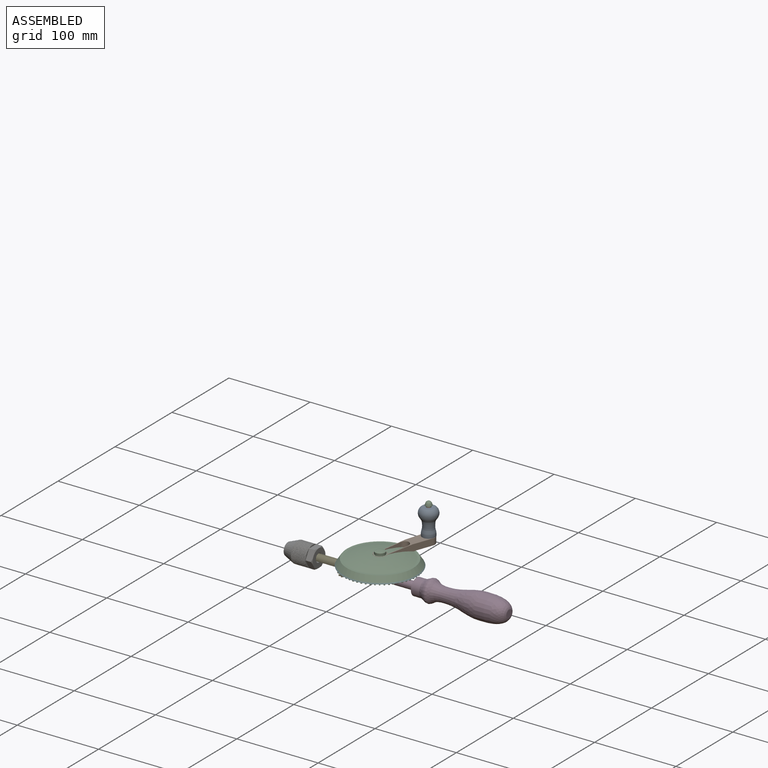
[diagram: assembled view]
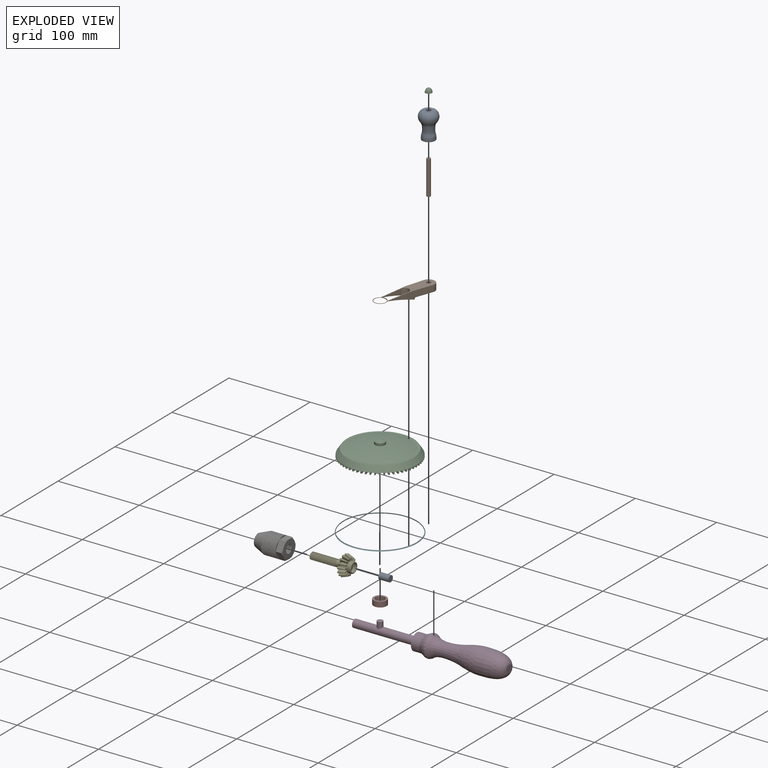
[diagram: exploded view]
GUIDED TOUR — MATED ASSEMBLY (Onshape document b2c207d5956f31ad4c4546be, AutoMate assembly b2c207d5956f31ad4c4546be_ff1017ac6d58e94d12cc54c4_243144a5537a0158968bfa58_default)

This assembly has 11 components, labeled P0..P10 below (a component is one placed occurrence of a part; the same part can appear more than once), held together by 10 mates. A mate is a constraint between two components; its type names the relative motion it leaves free:
  CYLINDRICAL — leaves both rotation about and translation along the listed axis free,
  FASTENED — locks the two components together rigidly (no relative motion),
  SLIDER — leaves translation along the listed axis free.
Axis/direction vectors are unit vectors and 'through' points are millimeter coordinates, both in the assembly's world frame.

MATES
  1. CYLINDRICAL "Cylindrical 2": P7 <-> P3, axis (0.000, 0.000, -1.000) through (-64.19, 0.55, 4.63) mm
  2. FASTENED "Fastened 2": P1 <-> P9, direction (0.000, 0.000, -1.000) through (-45.00, 58.41, 19.12) mm
  3. CYLINDRICAL "Cylindrical 1": P0 <-> P1, axis (0.000, 0.000, 1.000) through (-45.00, 58.41, 59.28) mm
  4. FASTENED "Fastened 4": P8 <-> P4, direction (-1.000, 0.000, 0.000) through (-100.51, 0.55, -0.39) mm
  5. SLIDER "Slider 1": P8 <-> P3, axis (-1.000, 0.000, 0.000) through (-94.16, 0.55, -0.39) mm
  6. FASTENED "Fastened 6": P5 <-> P10, direction (0.000, 0.000, -1.000) through (-64.19, 0.55, 12.25) mm
  7. FASTENED "Fastened 3": P9 <-> P10, direction (0.000, 0.000, 1.000) through (-64.19, 0.55, 23.95) mm
  8. CYLINDRICAL "Cylindrical 3": P6 <-> P4, axis (1.000, 0.000, 0.000) through (-154.60, 0.55, -0.79) mm
  9. FASTENED "Fastened 5": P2 <-> P1, direction (0.000, 0.000, -1.000) through (-45.00, 58.41, 61.03) mm
  10. FASTENED "Fastened 1": P10 <-> P7, direction (0.000, 0.000, -1.000) through (-64.19, 0.55, 10.98) mm

ASSEMBLY ORDER
  1. P4 — the base component [order heuristic]
  2. P8 [order verified]
  3. P6 — core [order heuristic]
  4. P7 [order verified]
  5. P5 [order verified]
  6. P10 [order verified]
  7. P9 [order verified]
  8. P3 [order verified]
  9. P1 [order verified]
  10. P0 [order verified]
  11. P2 [order verified]
(P9, P10 verified with a relaxed clearance tolerance: the source model stores slight part interference there.)
Order-tag legend:
  [order verified] — this step's position reverses a verified removal order: the component was checked to insert without passing through the ones already placed.
  [order heuristic] — the first 2 components form the assembly's core: parts whose collision-free extraction could not be verified, listed in mate-graph order.

Of the 11 components, 0 carry the full construction recipe — the FeatureScript program that regenerates the part's solid from scratch; the rest are supplied as boundary geometry only.
Each toured component is shown spotlighted twice — in the assembled view, then in the exploded view, where a leader line traces a displaced component back to its assembled socket (saturated green if recipe-attached, orange if geometry-only; every other component desaturated gray) — followed by its recipe or geometry summary and the mates that hold it.
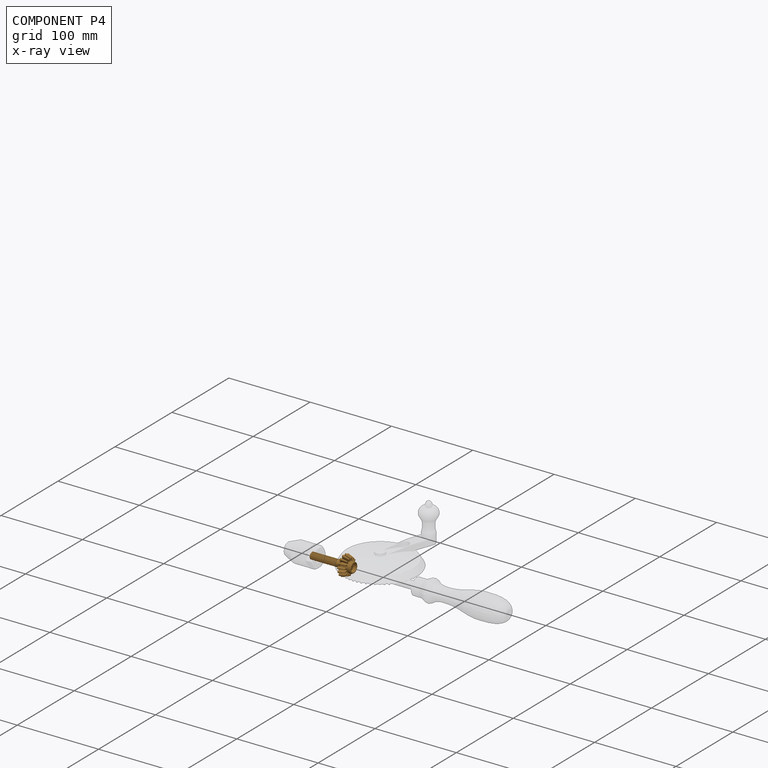
[diagram: component P4 — x-ray view]
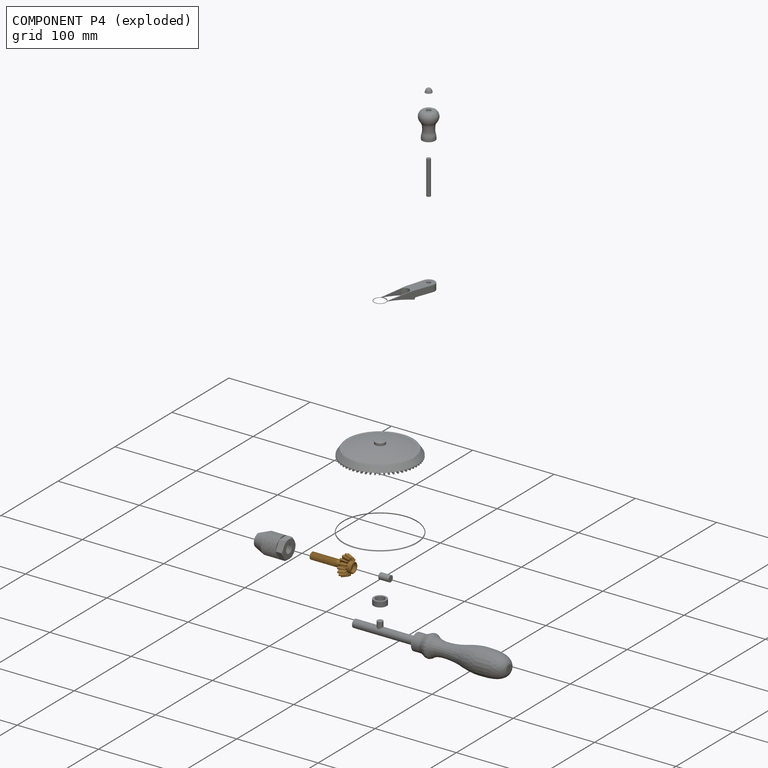
[diagram: component P4 — exploded]
COMPONENT P4 — geometry summary (no construction recipe available for this part):
  bounding box: 53.7 x 30.2 x 30.1 mm
  B-rep topology: 1 solid, 120 faces, 692 edges
  volume: 3942 mm^3 (8% of its bounding box)
Held by: FASTENED mate "Fastened 4" to P8; CYLINDRICAL mate "Cylindrical 3" to P6.
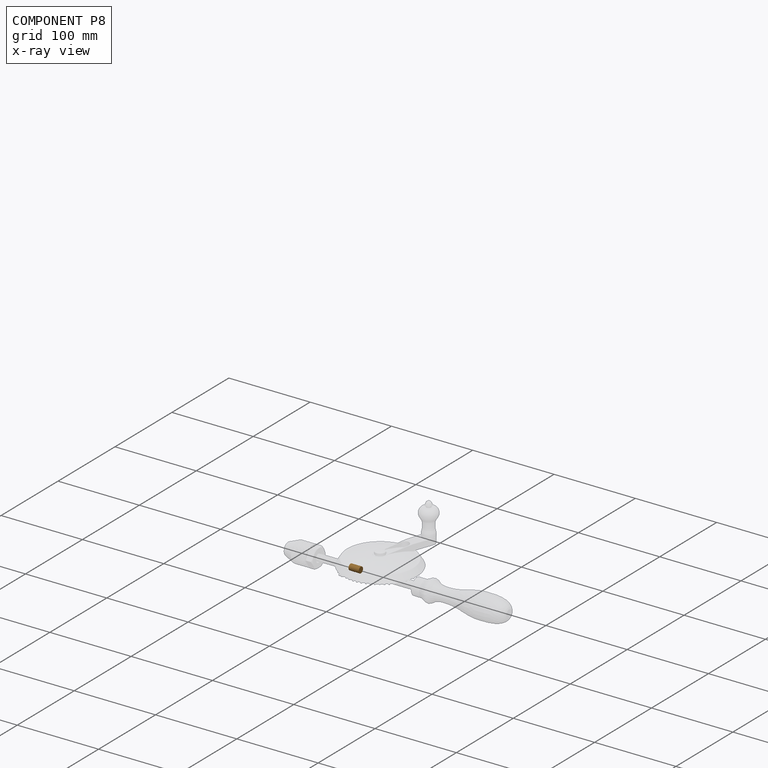
[diagram: component P8 — x-ray view]
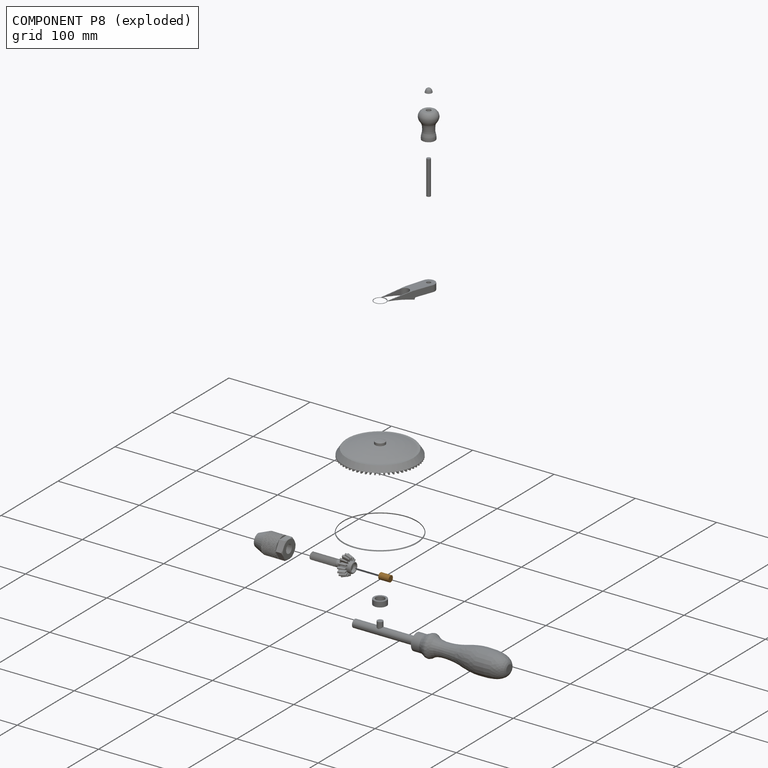
[diagram: component P8 — exploded]
COMPONENT P8 — geometry summary (no construction recipe available for this part):
  bounding box: 12.7 x 7.6 x 7.6 mm
  B-rep topology: 1 solid, 3 faces, 6 edges
  volume: 579 mm^3 (79% of its bounding box)
  symmetry: revolution-symmetric about the x axis through its bounding-box center; 2-fold rotationally symmetric about the y axis; 2-fold rotationally symmetric about the z axis; mirror-symmetric across its x mid-plane, y mid-plane, z mid-plane
Held by: FASTENED mate "Fastened 4" to P4; SLIDER mate "Slider 1" to P3.
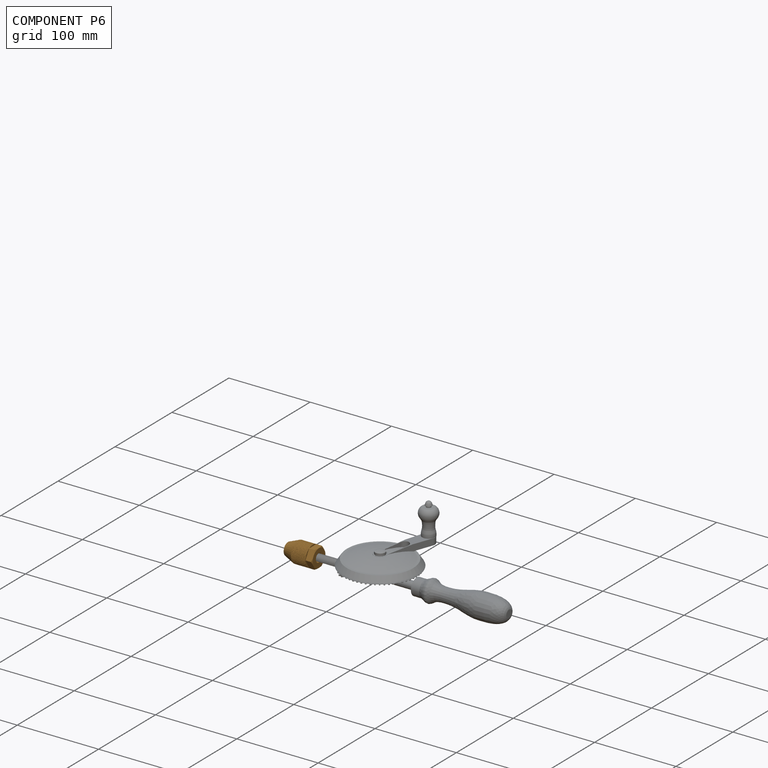
[diagram: component P6 — assembled]
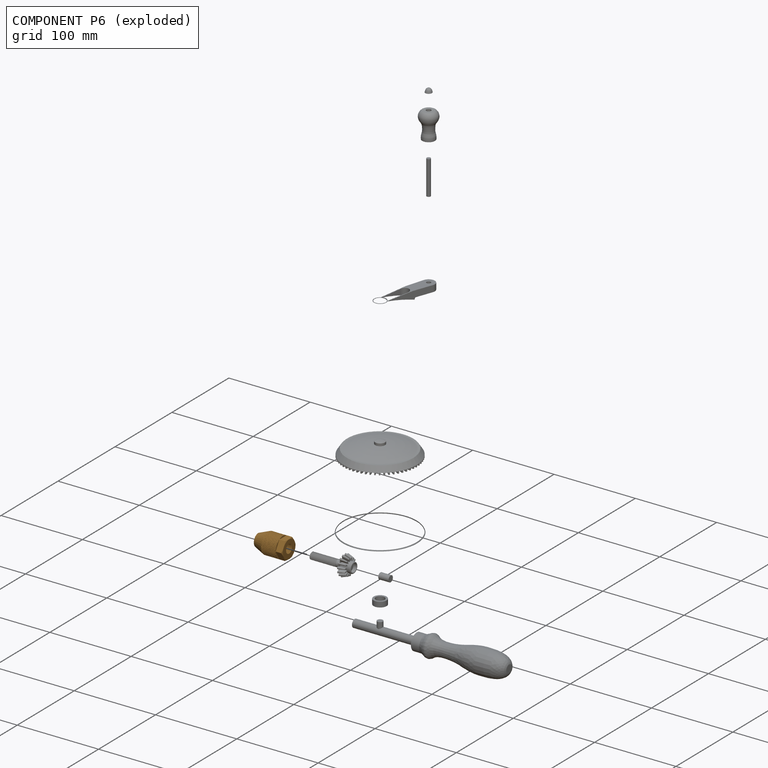
[diagram: component P6 — exploded]
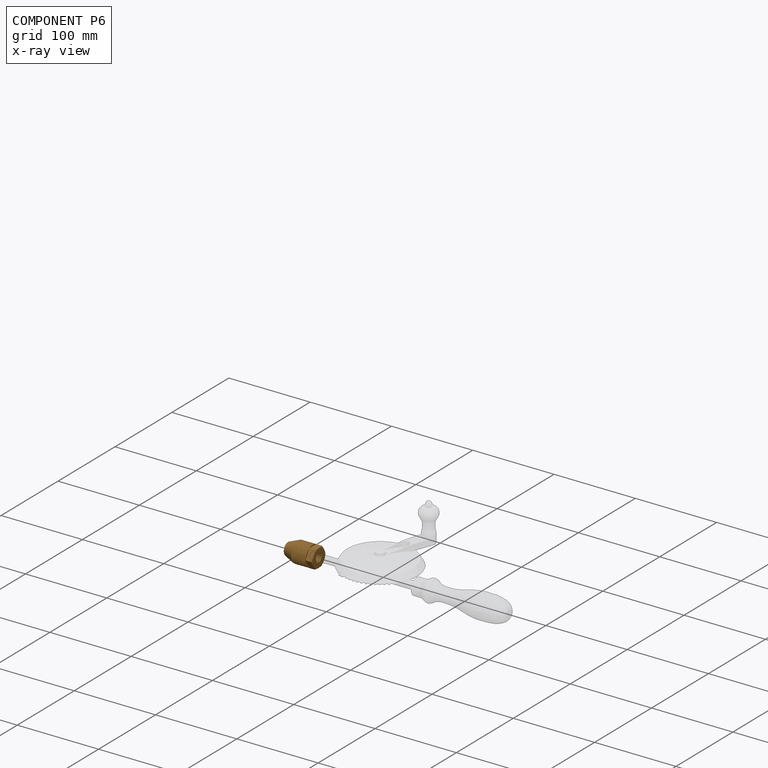
[diagram: component P6 — x-ray view]
COMPONENT P6 — geometry summary (no construction recipe available for this part):
  bounding box: 39.3 x 26.9 x 26.9 mm
  B-rep topology: 1 solid, 3353 faces, 13354 edges
  volume: 13782 mm^3 (48% of its bounding box)
Held by: CYLINDRICAL mate "Cylindrical 3" to P4.
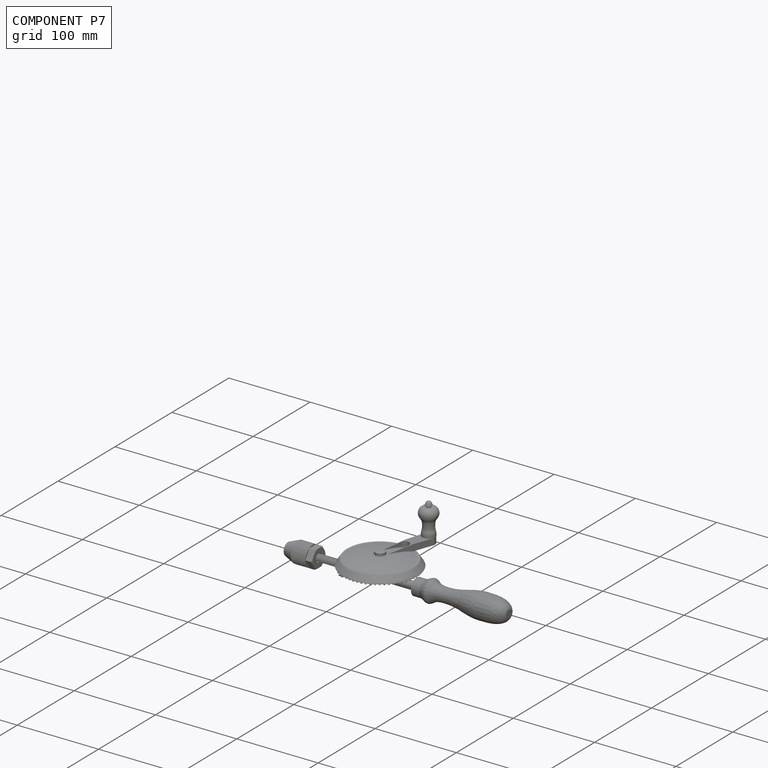
[diagram: component P7 — assembled]
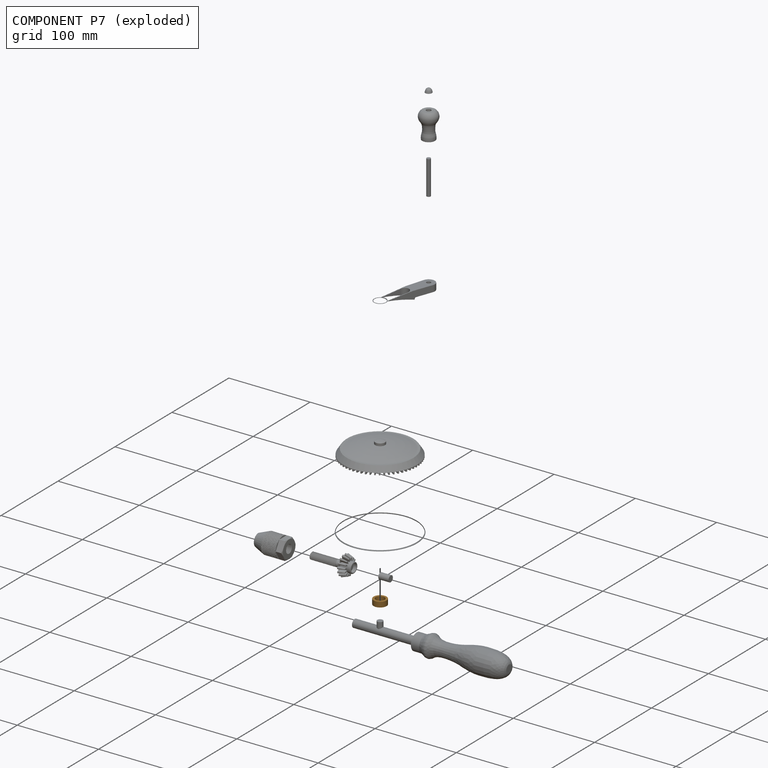
[diagram: component P7 — exploded]
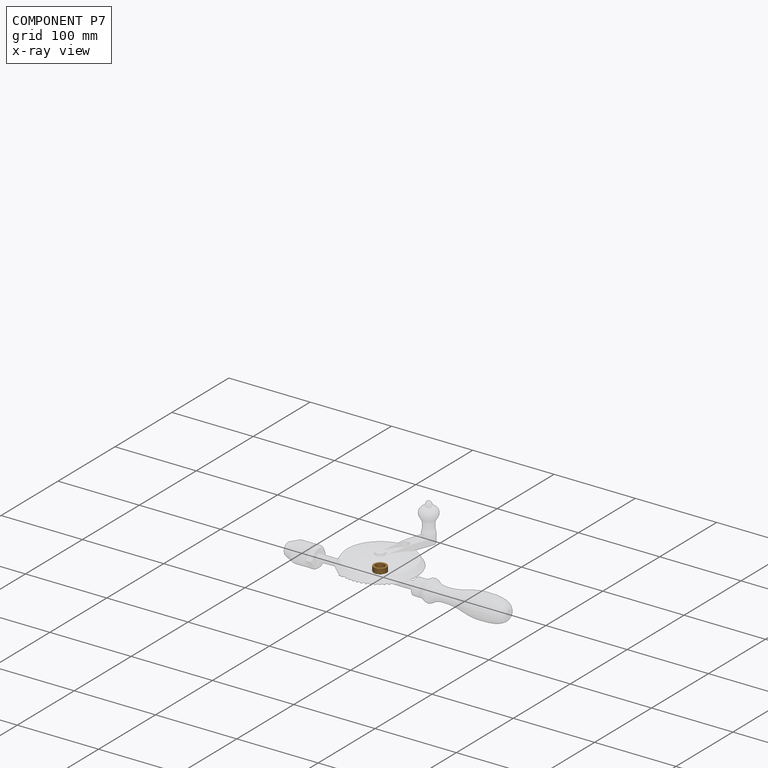
[diagram: component P7 — x-ray view]
COMPONENT P7 — geometry summary (no construction recipe available for this part):
  bounding box: 16.0 x 16.0 x 6.4 mm
  B-rep topology: 1 solid, 4 faces, 12 edges
  volume: 682 mm^3 (42% of its bounding box)
  symmetry: 2-fold rotationally symmetric about the x axis; 2-fold rotationally symmetric about the y axis; revolution-symmetric about the z axis through its bounding-box center; mirror-symmetric across its x mid-plane, y mid-plane, z mid-plane
Held by: CYLINDRICAL mate "Cylindrical 2" to P3; FASTENED mate "Fastened 1" to P10.
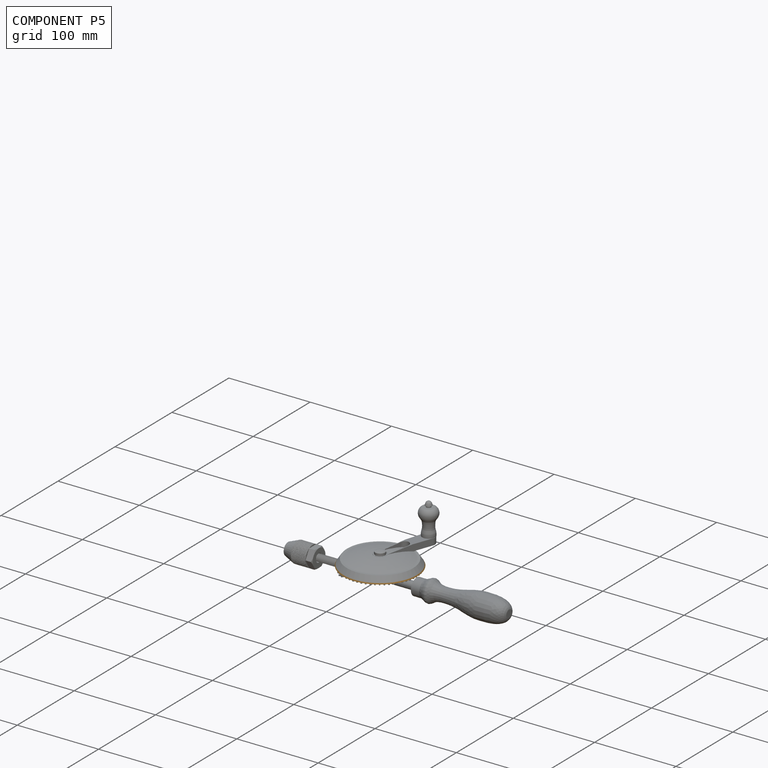
[diagram: component P5 — assembled]
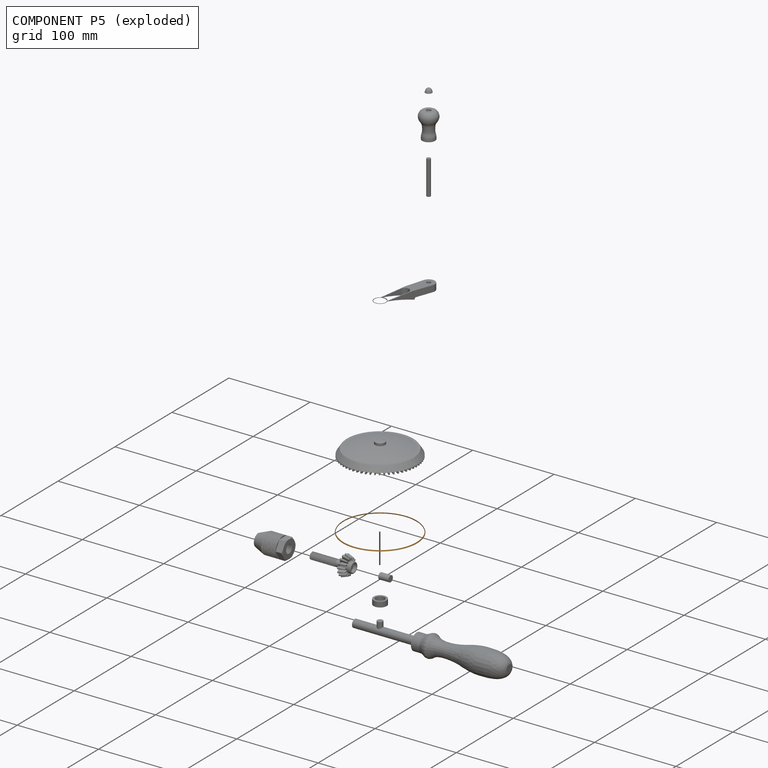
[diagram: component P5 — exploded]
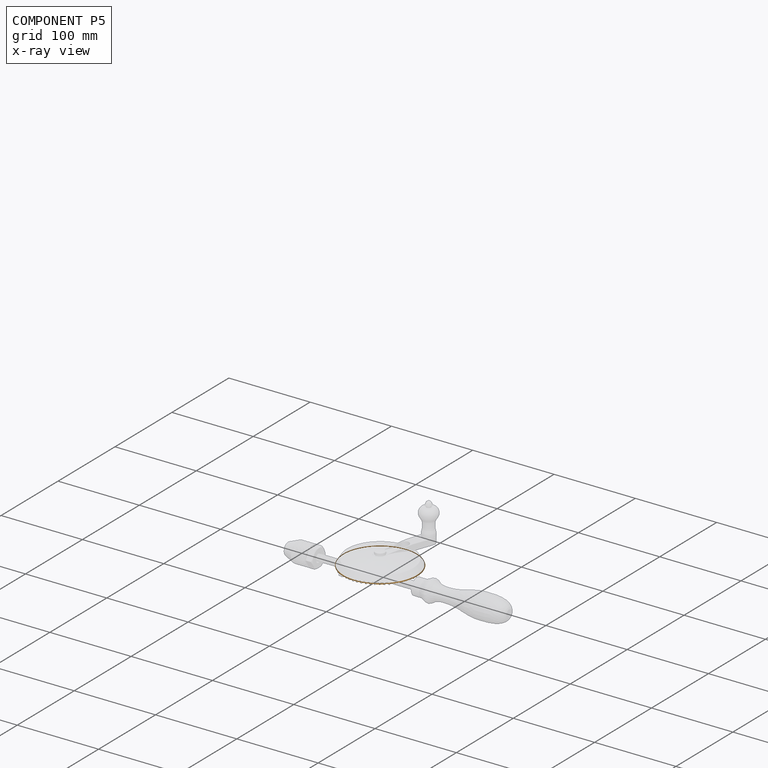
[diagram: component P5 — x-ray view]
COMPONENT P5 — geometry summary (no construction recipe available for this part):
  bounding box: 91.4 x 91.4 x 1.2 mm
  B-rep topology: 1 solid, 3 faces, 12 edges
  volume: 128 mm^3 (1% of its bounding box)
  symmetry: revolution-symmetric about the z axis through its bounding-box center; mirror-symmetric across its x mid-plane, y mid-plane
Held by: FASTENED mate "Fastened 6" to P10.
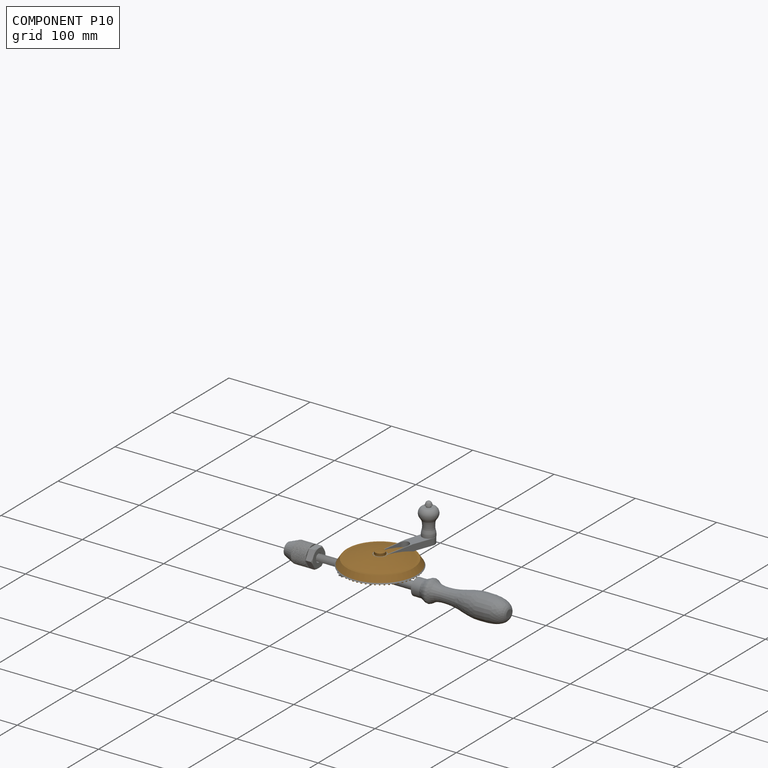
[diagram: component P10 — assembled]
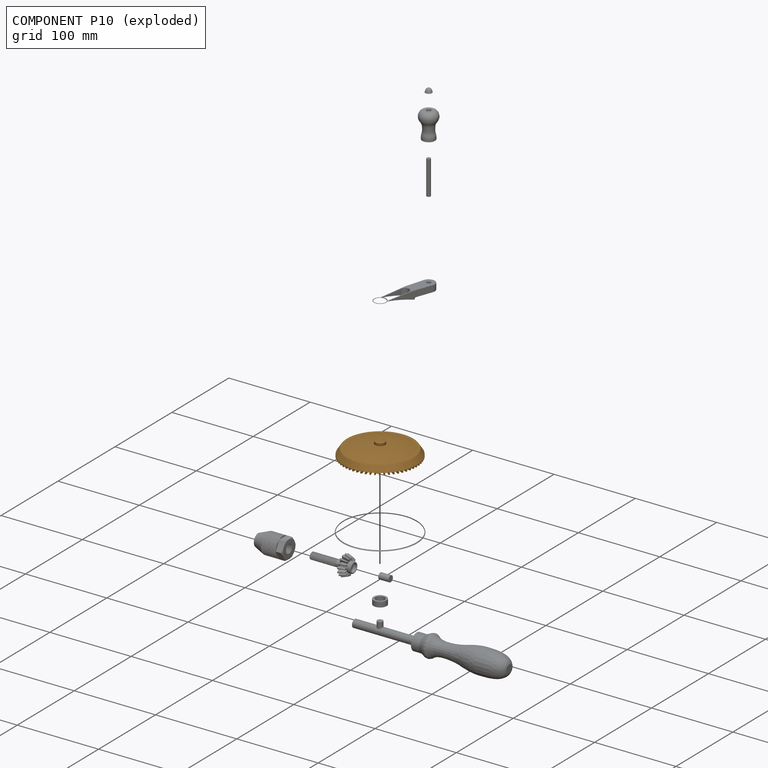
[diagram: component P10 — exploded]
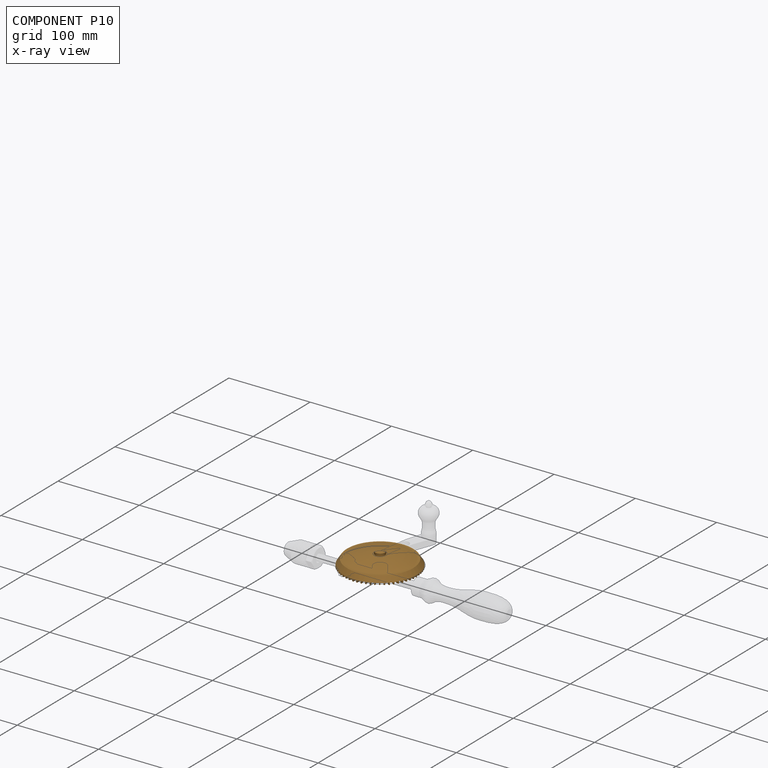
[diagram: component P10 — x-ray view]
COMPONENT P10 — geometry summary (no construction recipe available for this part):
  bounding box: 89.8 x 89.8 x 18.1 mm
  B-rep topology: 1 solid, 412 faces, 1996 edges
  volume: 46331 mm^3 (32% of its bounding box)
  symmetry: 2-fold rotationally symmetric about the z axis; mirror-symmetric across its x mid-plane, y mid-plane
Held by: FASTENED mate "Fastened 6" to P5; FASTENED mate "Fastened 3" to P9; FASTENED mate "Fastened 1" to P7.
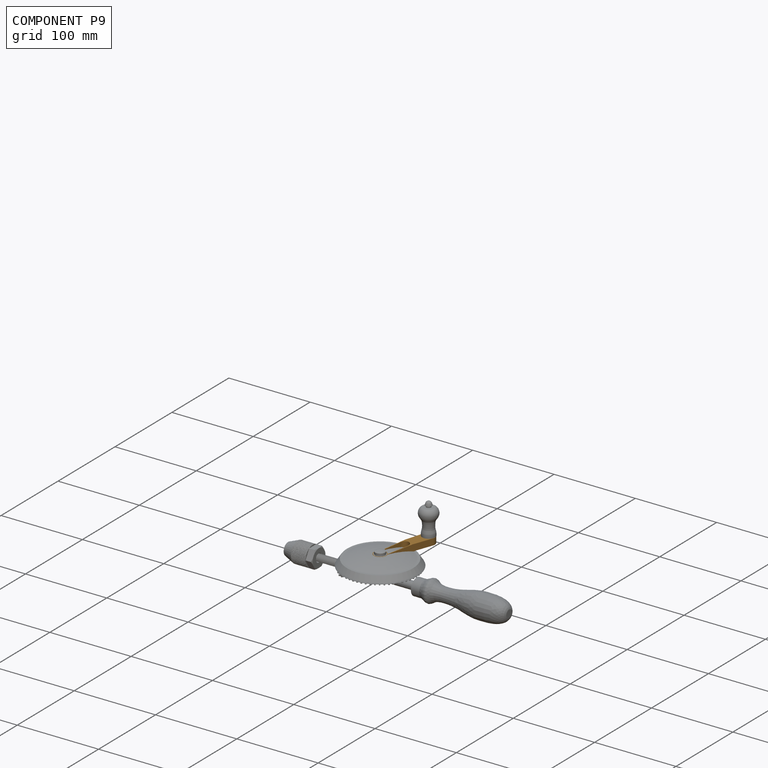
[diagram: component P9 — assembled]
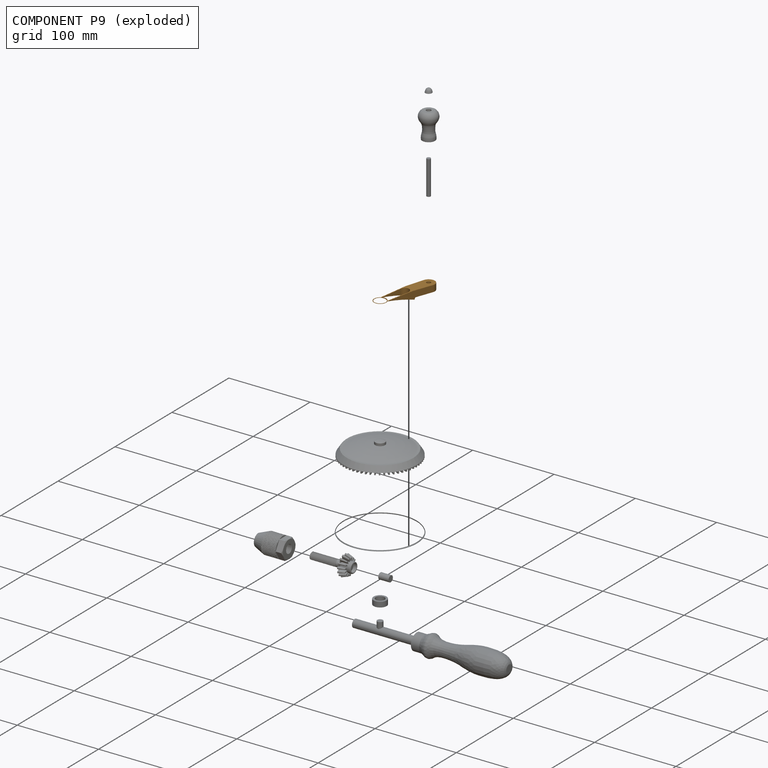
[diagram: component P9 — exploded]
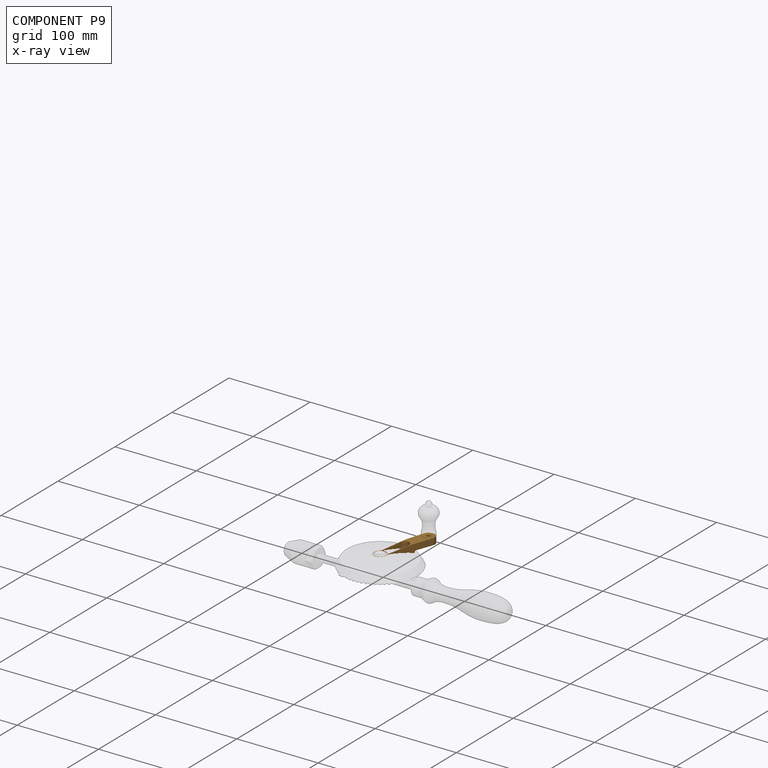
[diagram: component P9 — x-ray view]
COMPONENT P9 — geometry summary (no construction recipe available for this part):
  bounding box: 76.2 x 15.6 x 10.2 mm
  B-rep topology: 1 solid, 29 faces, 172 edges
  volume: 1531 mm^3 (13% of its bounding box)
  symmetry: mirror-symmetric across its z mid-plane
Held by: FASTENED mate "Fastened 2" to P1; FASTENED mate "Fastened 3" to P10.
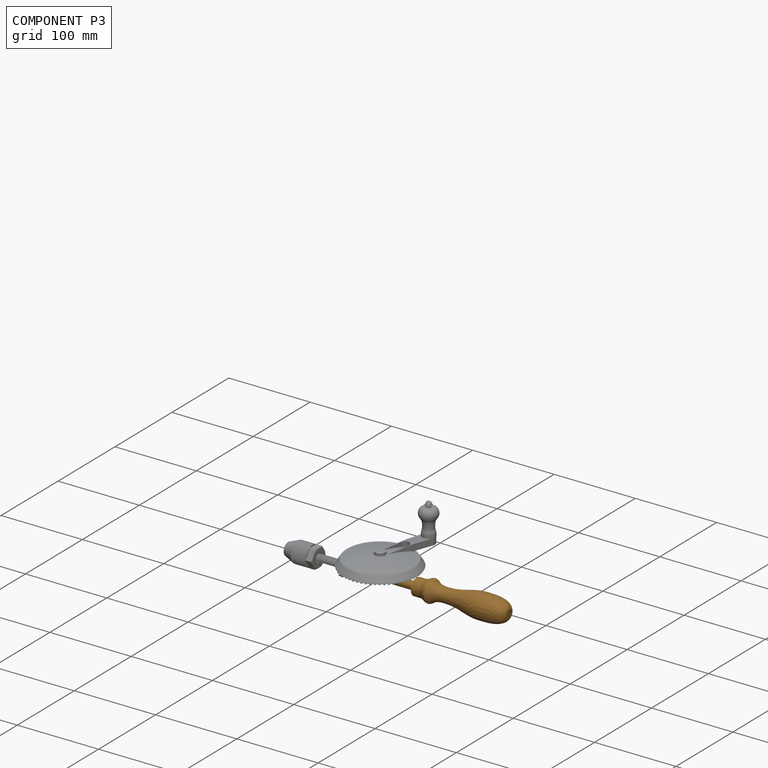
[diagram: component P3 — assembled]
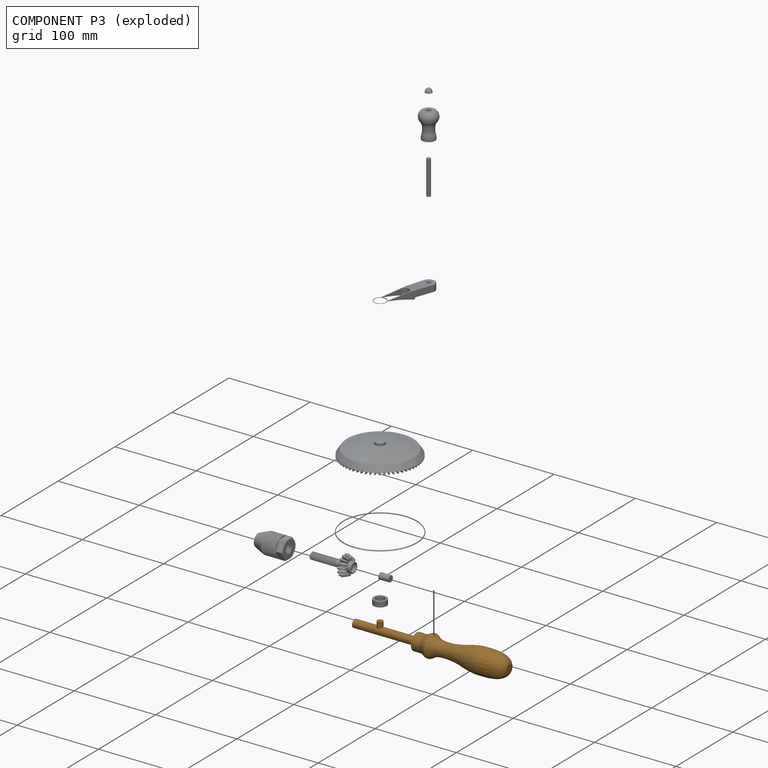
[diagram: component P3 — exploded]
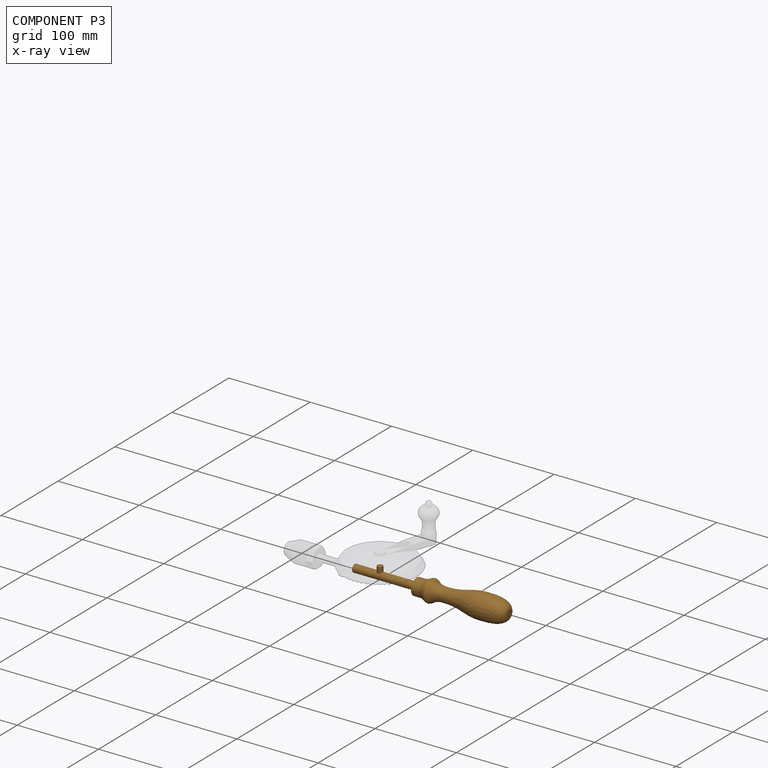
[diagram: component P3 — x-ray view]
COMPONENT P3 — geometry summary (no construction recipe available for this part):
  bounding box: 190.0 x 30.2 x 30.2 mm
  B-rep topology: 1 solid, 10 faces, 32 edges
  volume: 53558 mm^3 (31% of its bounding box)
  symmetry: mirror-symmetric across its y mid-plane
Held by: CYLINDRICAL mate "Cylindrical 2" to P7; SLIDER mate "Slider 1" to P8.
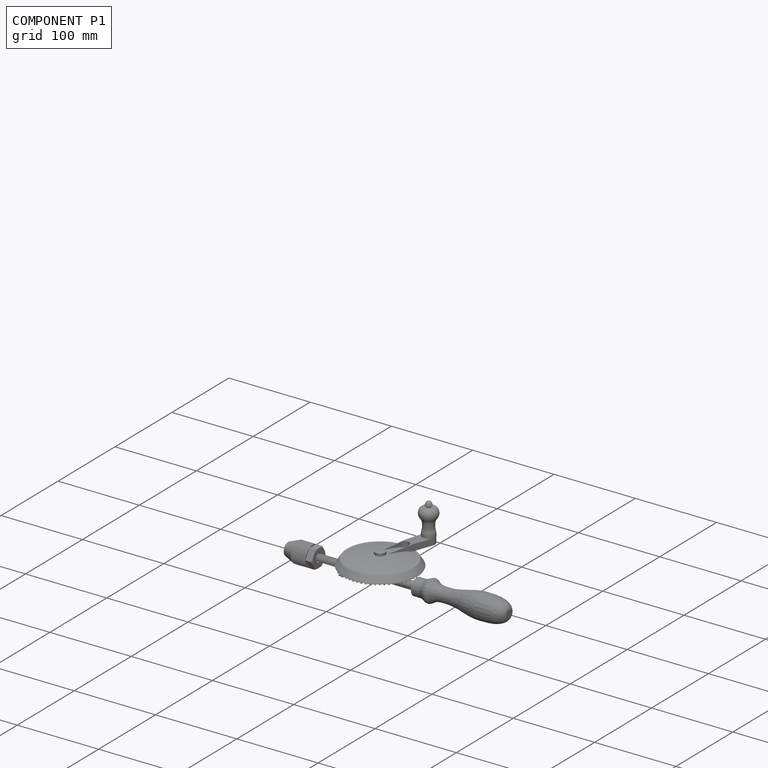
[diagram: component P1 — assembled]
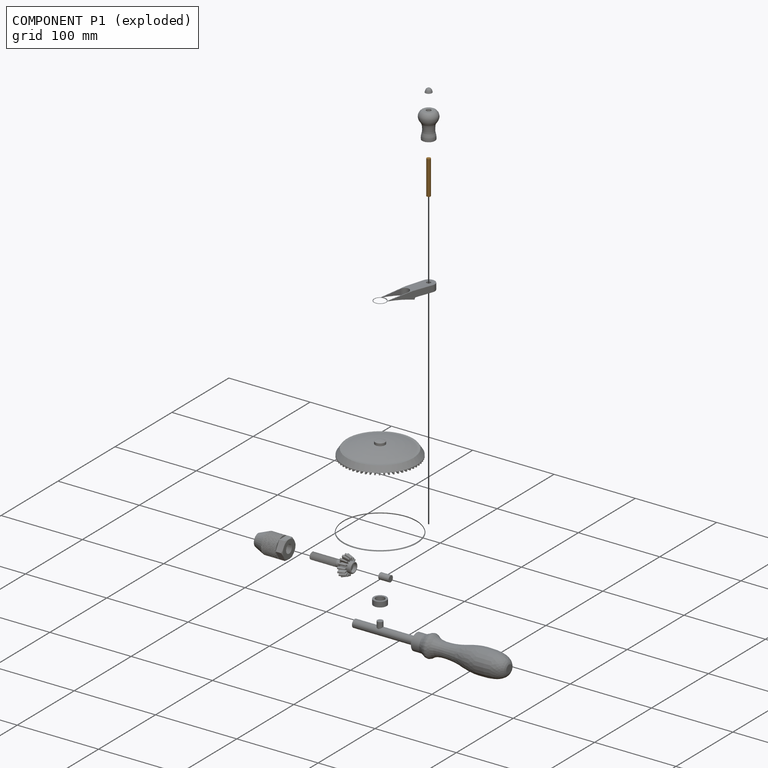
[diagram: component P1 — exploded]
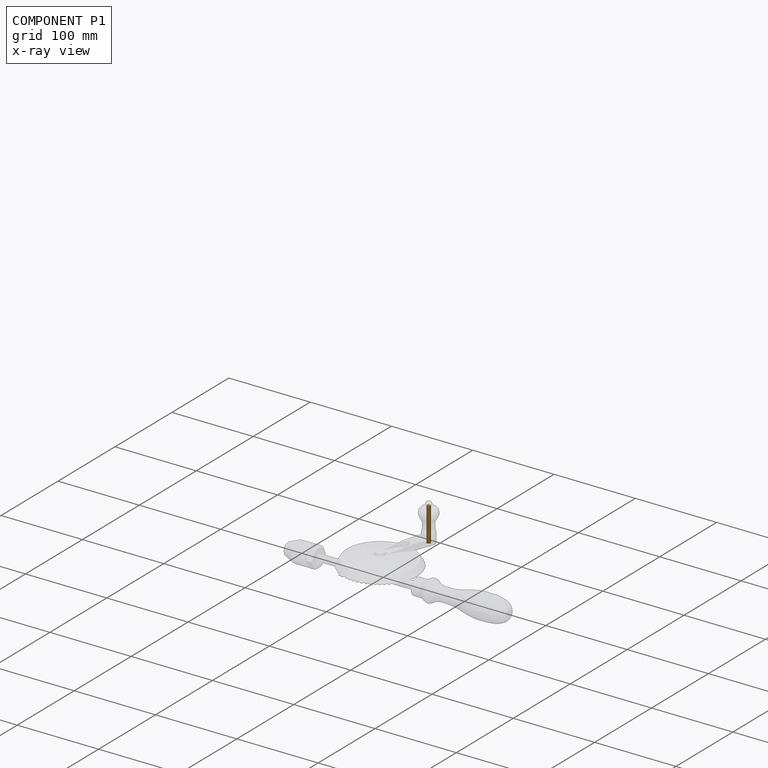
[diagram: component P1 — x-ray view]
COMPONENT P1 — geometry summary (no construction recipe available for this part):
  bounding box: 41.9 x 4.8 x 4.8 mm
  B-rep topology: 1 solid, 3 faces, 6 edges
  volume: 767 mm^3 (79% of its bounding box)
  symmetry: 2-fold rotationally symmetric about the x axis; revolution-symmetric about the y axis through its bounding-box center; 2-fold rotationally symmetric about the z axis; mirror-symmetric across its x mid-plane, y mid-plane, z mid-plane
Held by: FASTENED mate "Fastened 2" to P9; CYLINDRICAL mate "Cylindrical 1" to P0; FASTENED mate "Fastened 5" to P2.
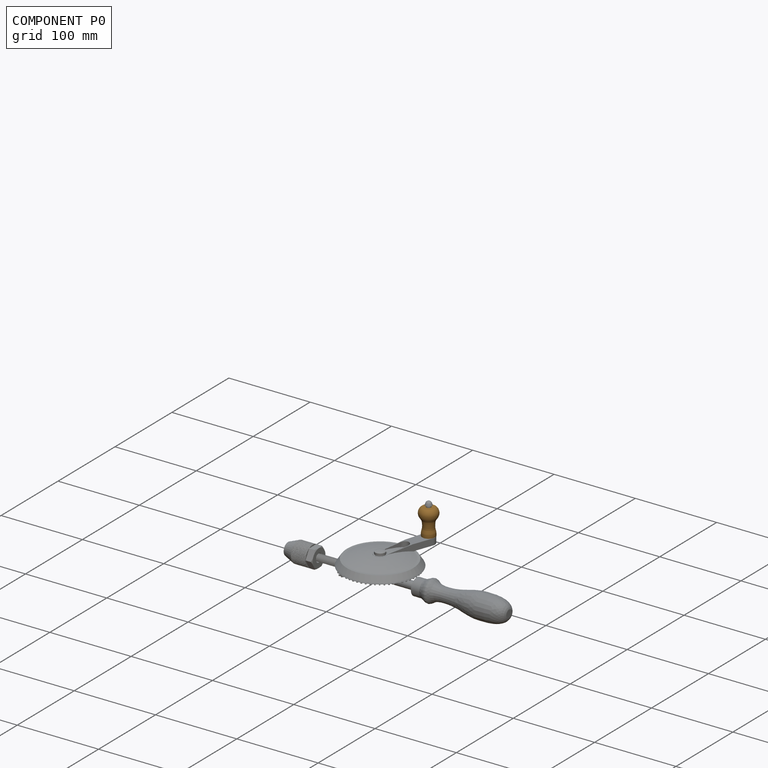
[diagram: component P0 — assembled]
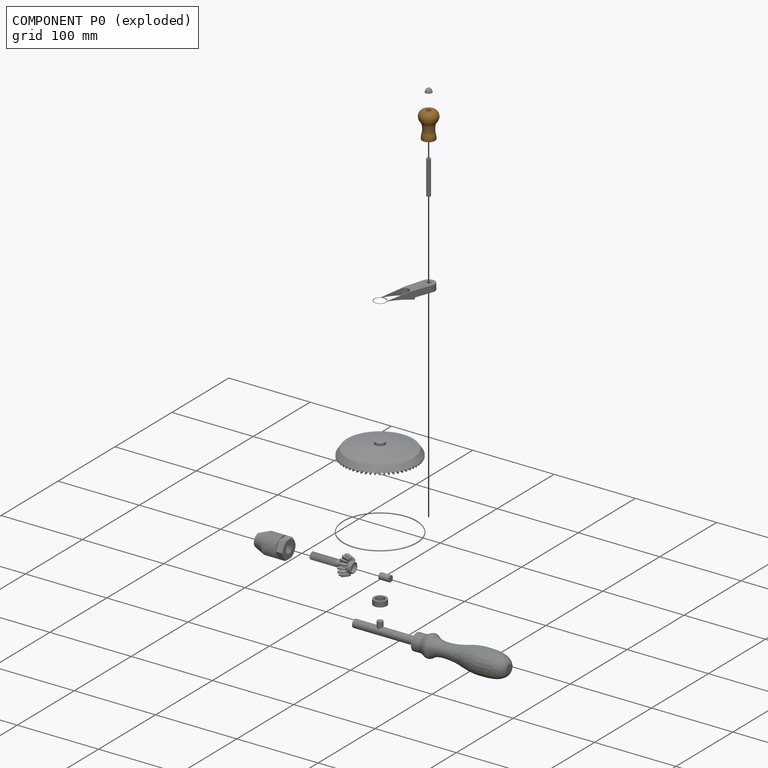
[diagram: component P0 — exploded]
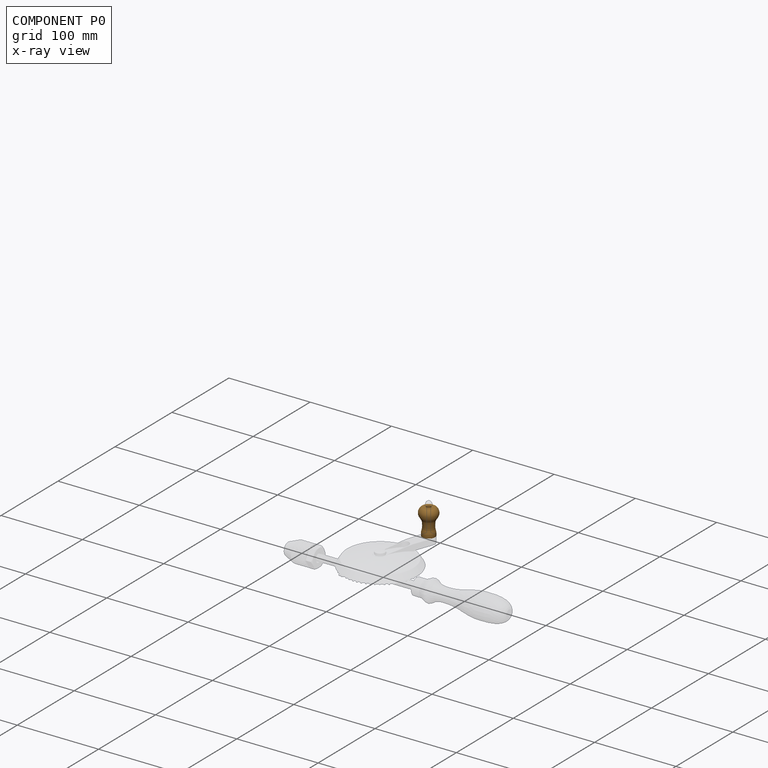
[diagram: component P0 — x-ray view]
COMPONENT P0 — geometry summary (no construction recipe available for this part):
  bounding box: 32.0 x 21.8 x 21.8 mm
  B-rep topology: 1 solid, 4 faces, 12 edges
  volume: 6308 mm^3 (41% of its bounding box)
  symmetry: revolution-symmetric about the x axis through its bounding-box center; mirror-symmetric across its y mid-plane, z mid-plane
Held by: CYLINDRICAL mate "Cylindrical 1" to P1.
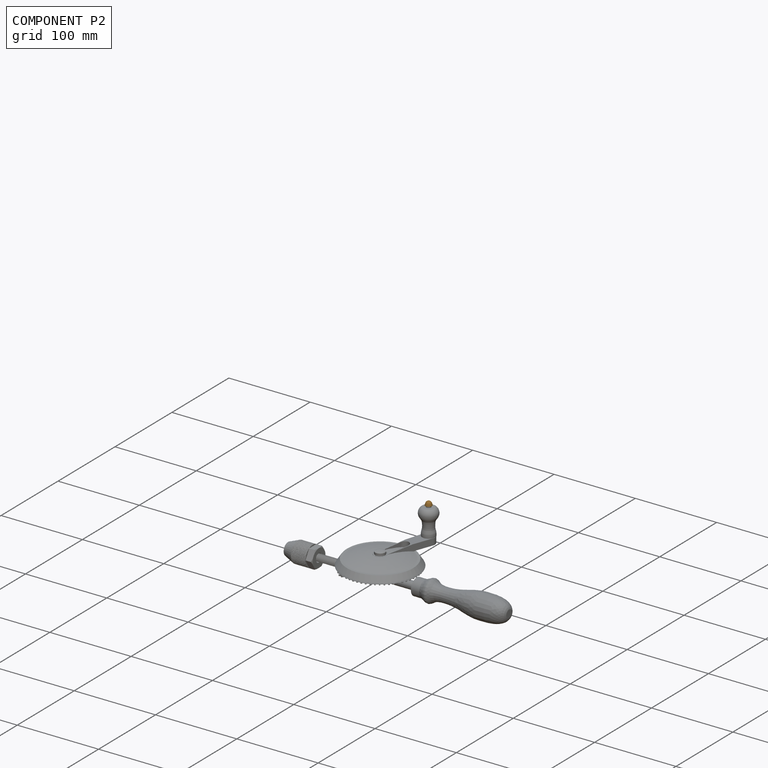
[diagram: component P2 — assembled]
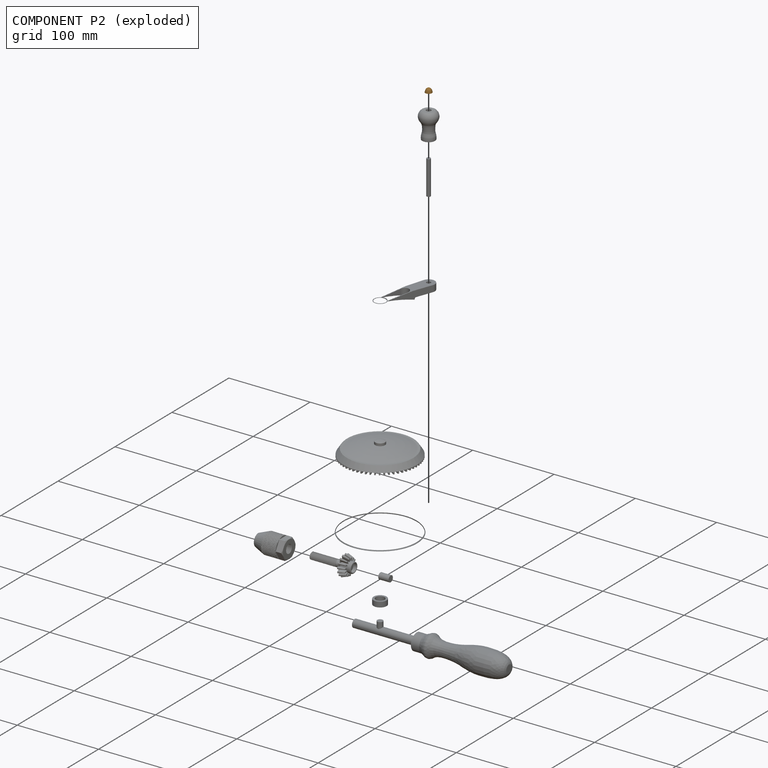
[diagram: component P2 — exploded]
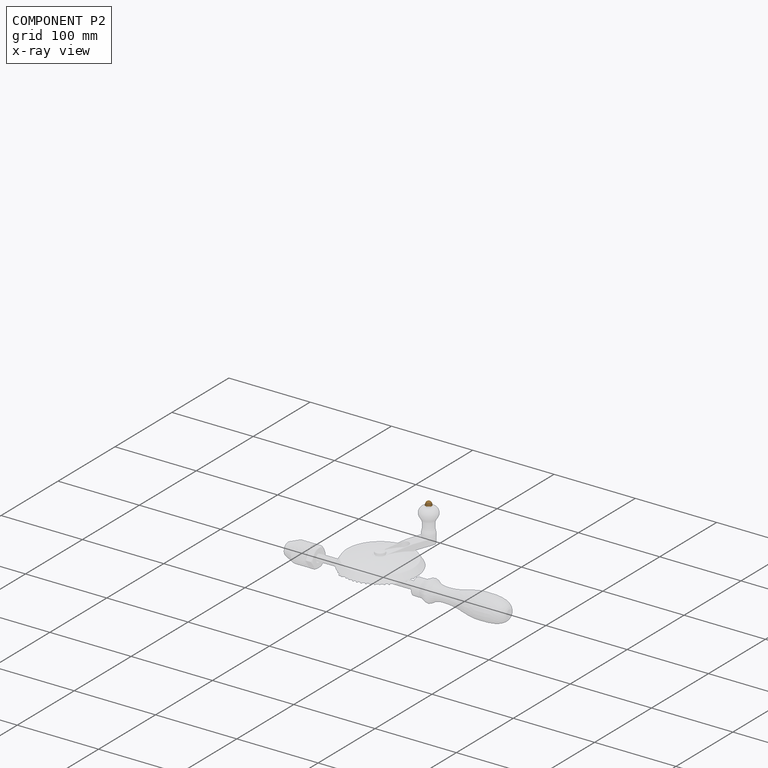
[diagram: component P2 — x-ray view]
COMPONENT P2 — geometry summary (no construction recipe available for this part):
  bounding box: 8.1 x 8.1 x 4.8 mm
  B-rep topology: 1 solid, 2 faces, 7 edges
  volume: 161 mm^3 (50% of its bounding box)
  symmetry: revolution-symmetric about the y axis through its bounding-box center; mirror-symmetric across its x mid-plane, z mid-plane
Held by: FASTENED mate "Fastened 5" to P1.
PROVENANCE & LICENSES
Assembly (occurrences, transforms, mates, per-part STEP geometry): AutoMate dataset, Zenodo record 7776208, CC0.
Construction recipes: CADFS (HuggingFace VladPyatov/CADFS, CC-BY-4.0, layered over the ABC dataset), FeatureScript reconstruction programs keyed by ABC model id.
Join: ABC meta listings map ABC model id -> Onshape documentId; within a shared document, parts are matched by geometric signature (bounding-box dims + volume at 0.1% relative tolerance, exact B-rep face/solid counts).
Verification: no recipe attachments in this assembly (11 components, all geometry-only).
Renders: orthographic iso camera (az 35 / el 25); the floor grid conveys scale (grid pitch printed in each image; no ruler). In the exploded view each component is displaced by its stored offset vector: the offsets alone carry the explosion direction (mate normal/axis signs are not orientation cues and do not encode it), and separation distances are assigned per mate-chain, not proportionally to assembly-order depth.
